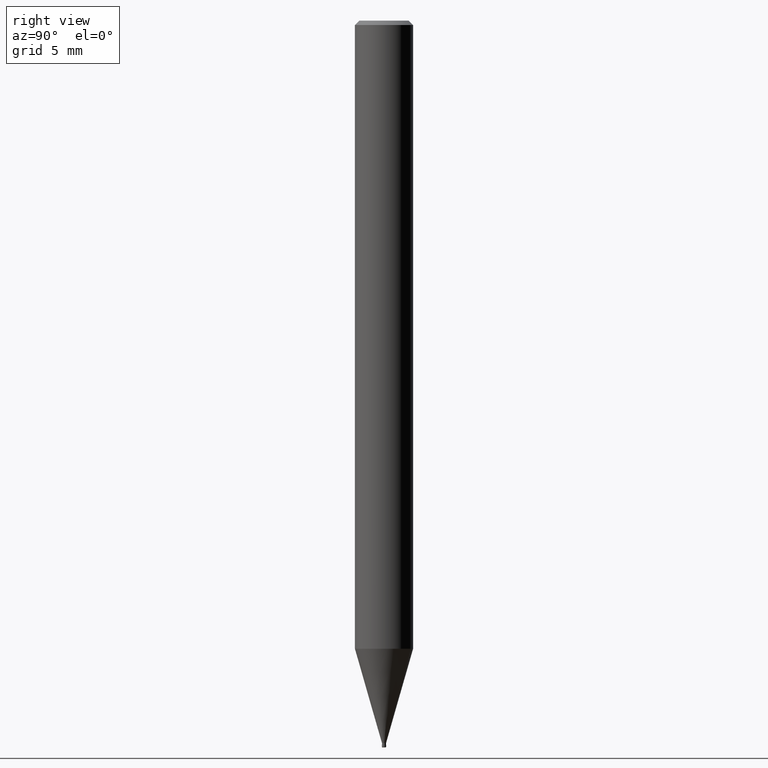
[diagram: clean part render]
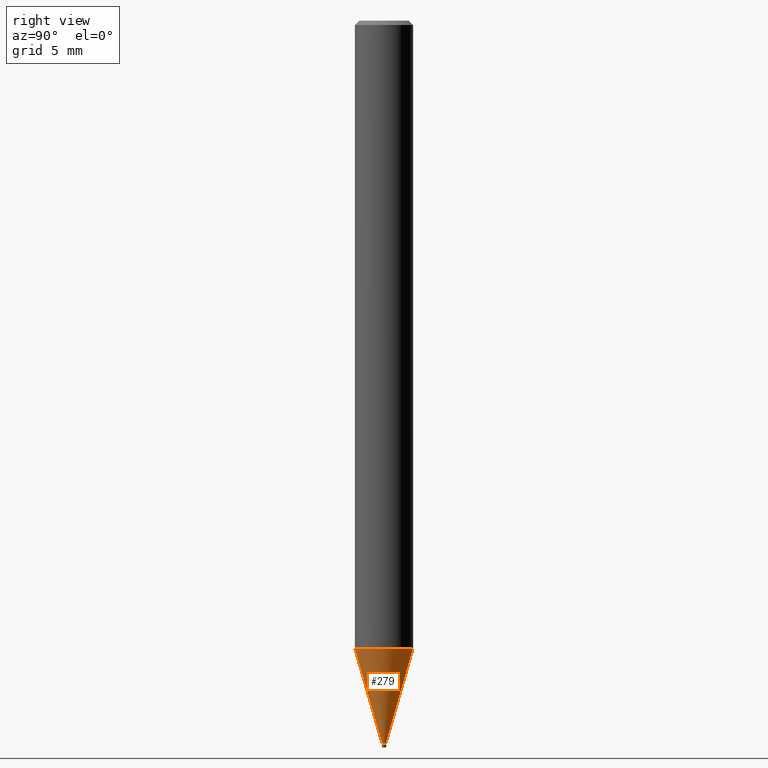
[diagram: same view with one face highlighted and labeled with its STEP entity id]
A machine part, right view. The second image highlights one B-rep face of the part: STEP entity #279.
In plain terms, the highlighted conical surface has half-angle 15.999 deg.
Its self-contained STEP definition (entity closure, byte-faithful):
#153=VERTEX_POINT('',#391);
#221=VERTEX_POINT('',#466);
#245=VERTEX_POINT('',#493);
#247=EDGE_CURVE('',#245,#341,#495,.T.);
#279=ADVANCED_FACE('',(#534),#535,.T.);
#303=EDGE_CURVE('',#153,#221,#560,.T.);
#329=EDGE_CURVE('',#245,#221,#588,.T.);
#341=VERTEX_POINT('',#604);
#351=EDGE_CURVE('',#341,#153,#615,.T.);
#391=CARTESIAN_POINT('',(1.71383659217442E-017,-0.13995,-49.69));
#466=CARTESIAN_POINT('',(2.44915147732706E-016,-1.99995,-43.203));
#493=CARTESIAN_POINT('',(0.0,1.99995,-43.203));
#495=LINE('',#781,#782);
#534=FACE_OUTER_BOUND('',#829,.T.);
#535=CONICAL_SURFACE('',#830,1.06995,0.27923596926092);
#560=LINE('',#871,#872);
#588=CIRCLE('',#908,1.99995);
#604=CARTESIAN_POINT('',(0.0,0.13995,-49.69));
#615=CIRCLE('',#938,0.13995);
#781=CARTESIAN_POINT('',(-1.31026756827225E-016,1.06995,-46.4465));
#782=VECTOR('',#1092,1.0);
#829=EDGE_LOOP('',(#1151,#1152,#1153,#1154));
#830=AXIS2_PLACEMENT_3D('',#1155,#1156,#1157);
#871=CARTESIAN_POINT('',(1.31026756827225E-016,-1.06995,-46.4465));
#872=VECTOR('',#1186,1.0);
#908=AXIS2_PLACEMENT_3D('',#1222,#1223,#1224);
#938=AXIS2_PLACEMENT_3D('',#1254,#1255,#1256);
#1092=DIRECTION('',(3.37527585527933E-017,-0.275621292078393,-0.961266301995986));
#1151=ORIENTED_EDGE('',*,*,#247,.F.);
#1152=ORIENTED_EDGE('',*,*,#329,.T.);
#1153=ORIENTED_EDGE('',*,*,#303,.F.);
#1154=ORIENTED_EDGE('',*,*,#351,.F.);
#1155=CARTESIAN_POINT('',(0.0,0.0,-46.4465));
#1156=DIRECTION('',(-0.0,-0.0,1.0));
#1157=DIRECTION('',(0.0,1.0,0.0));
#1186=DIRECTION('',(3.37527585527933E-017,-0.275621292078393,0.961266301995986));
#1222=CARTESIAN_POINT('',(0.0,0.0,-43.203));
#1223=DIRECTION('',(0.0,0.0,-1.0));
#1224=DIRECTION('',(0.0,1.0,0.0));
#1254=CARTESIAN_POINT('',(0.0,0.0,-49.69));
#1255=DIRECTION('',(0.0,0.0,-1.0));
#1256=DIRECTION('',(0.0,1.0,0.0));